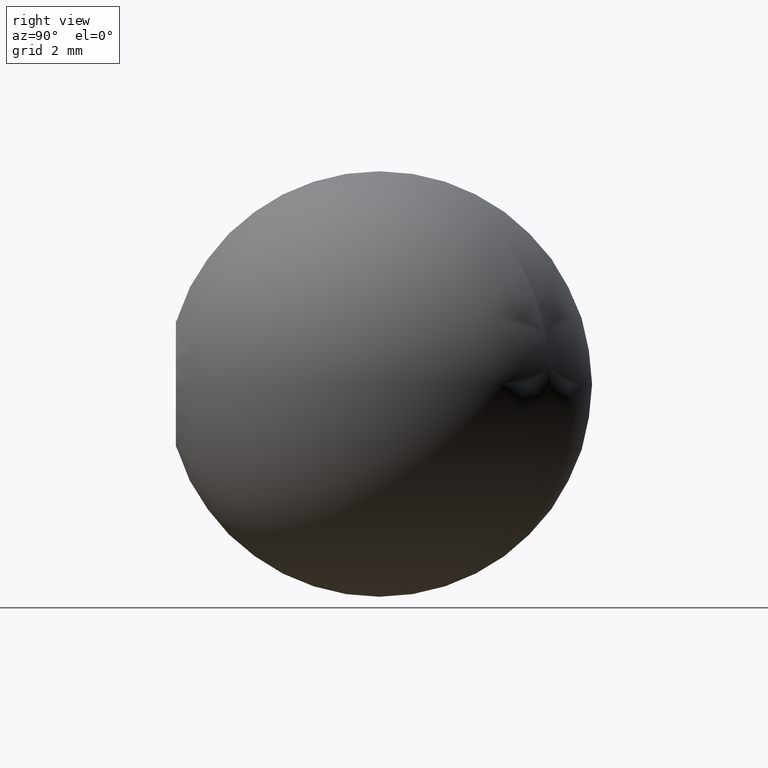
[diagram: clean part render]
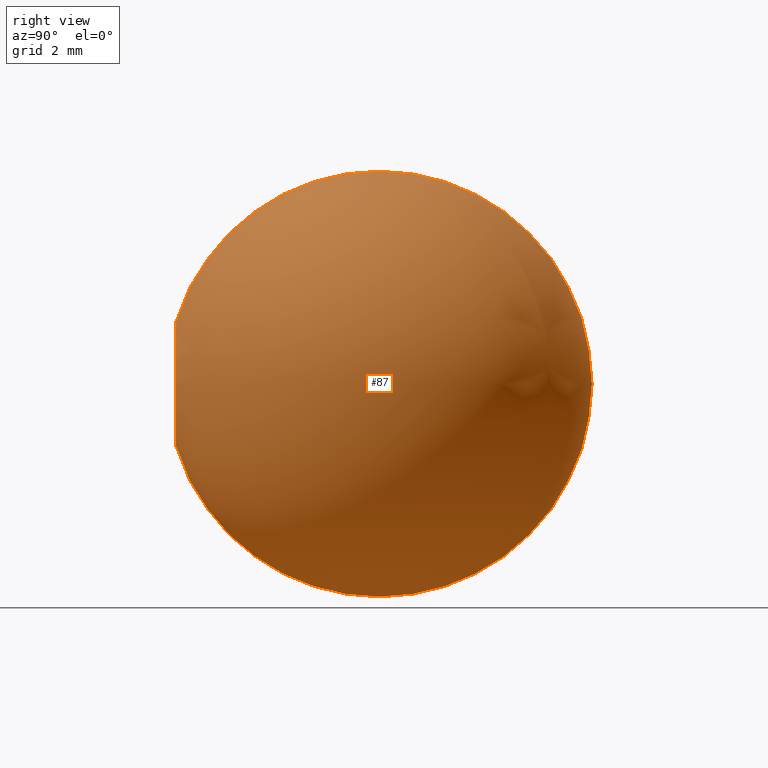
[diagram: same view with one face highlighted and labeled with its STEP entity id]
A machine part, right view. The second image highlights one B-rep face of the part: STEP entity #87.
In plain terms, the highlighted spherical surface has radius 7.5 mm.
Its self-contained STEP definition (entity closure, byte-faithful):
#18 = CIRCLE ( 'NONE', #42, 2.196231818753075604 ) ;
#19 = AXIS2_PLACEMENT_3D ( 'NONE', #23, #62, #47 ) ;
#21 = ORIENTED_EDGE ( 'NONE', *, *, #50, .F. ) ;
#23 = CARTESIAN_POINT ( 'NONE',  ( -1.887411345499492888E-31, 7.500000000000000000, 0.000000000000000000 ) ) ;
#24 = VERTEX_POINT ( 'NONE', #140 ) ;
#32 = FACE_OUTER_BOUND ( 'NONE', #112, .T. ) ;
#37 = SPHERICAL_SURFACE ( 'NONE', #19, 7.500000000000000000 ) ;
#42 = AXIS2_PLACEMENT_3D ( 'NONE', #72, #118, #131 ) ;
#47 = DIRECTION ( 'NONE',  ( -1.000000000000000000, -2.312964634635742957E-16, 0.000000000000000000 ) ) ;
#50 = EDGE_CURVE ( 'NONE', #24, #24, #18, .T. ) ;
#62 = DIRECTION ( 'NONE',  ( -0.000000000000000000, 0.000000000000000000, -1.000000000000000000 ) ) ;
#72 = CARTESIAN_POINT ( 'NONE',  ( -1.887411345499492888E-31, 0.3287681812469229747, 0.000000000000000000 ) ) ;
#87 = ADVANCED_FACE ( 'NONE', ( #32 ), #37, .T. ) ;
#112 = EDGE_LOOP ( 'NONE', ( #21 ) ) ;
#118 = DIRECTION ( 'NONE',  ( -0.000000000000000000, -1.000000000000000000, -0.000000000000000000 ) ) ;
#131 = DIRECTION ( 'NONE',  ( 0.000000000000000000, 0.000000000000000000, 1.000000000000000000 ) ) ;
#140 = CARTESIAN_POINT ( 'NONE',  ( -1.887411345499492888E-31, 0.3287681812469229747, 2.196231818753075604 ) ) ;